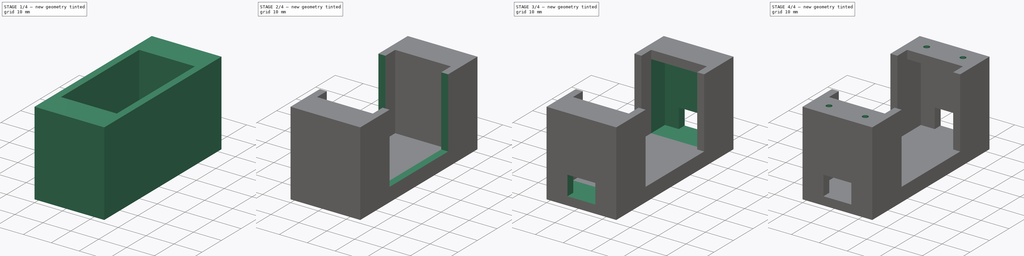
[diagram: build sequence overview — one tinted view per stage of 4, left to right]
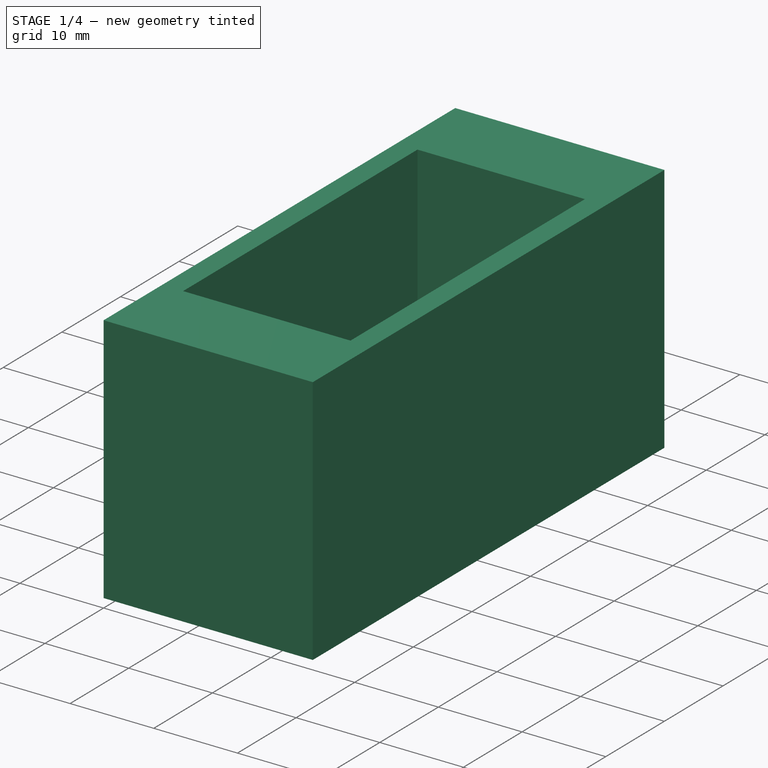
[diagram: stage 1 of 4 — iso view after this stage's code; geometry added in this stage tinted green]
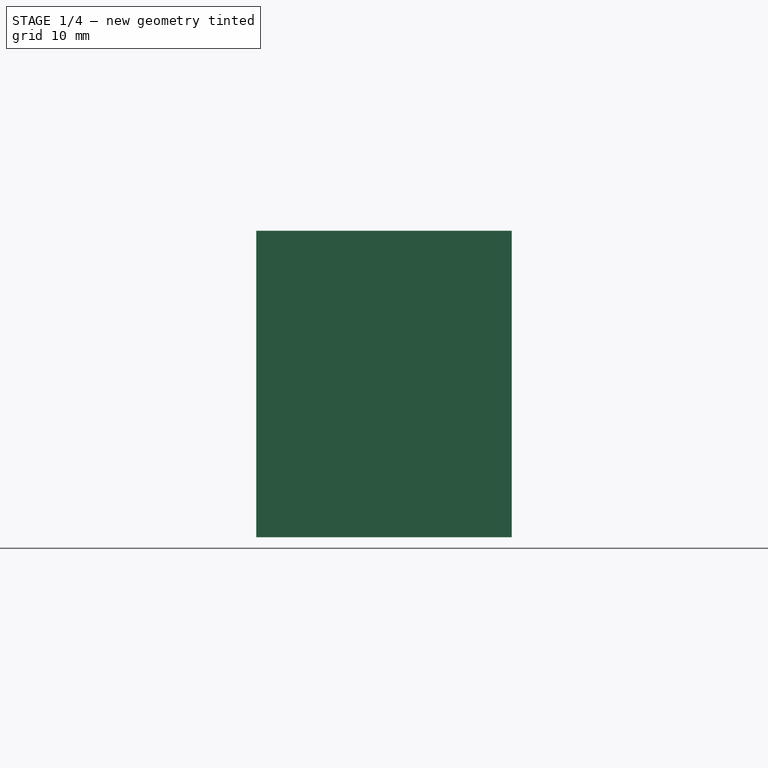
[diagram: stage 1 of 4 — front view after this stage's code; geometry added in this stage tinted green]
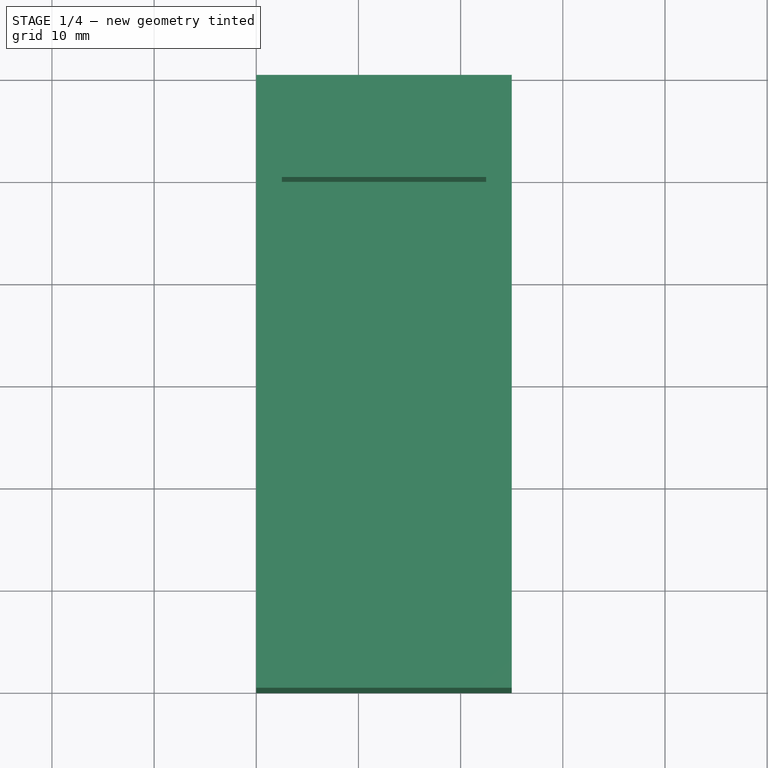
[diagram: stage 1 of 4 — top view after this stage's code; geometry added in this stage tinted green]
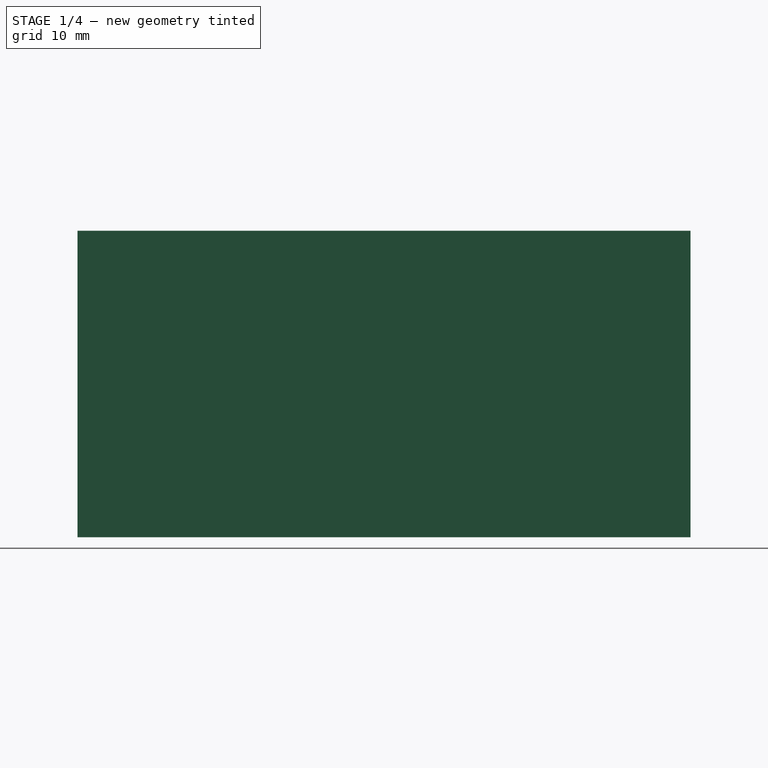
[diagram: stage 1 of 4 — right view after this stage's code; geometry added in this stage tinted green]
FCSTD DOCUMENT  (FreeCAD 0.18R16131 (Git))
Label: supp_servo_base
License: All rights reserved
LicenseURL: http://en.wikipedia.org/wiki/All_rights_reserved
objects: Sketcher::SketchObject×9, PartDesign::Pocket×8, App::DocumentObjectGroup×2, PartDesign::Pad×1, PartDesign::Body×1, PartDesign::CoordinateSystem×1, App::FeaturePython×1, App::Part×1
note: 29 computed .brp shape members not serialized (recipe doc carries the construction recipe); baked Part::Feature solids carry a one-line shape summary decoded from their .brp

FEATURE [Sketcher::SketchObject] Sketch
  MapMode = 5
  Support = -> [XY_Plane]
  sketch-geometry (4):
    g0: LineSegment StartX=0 StartY=0 StartZ=0 EndX=25 EndY=0 EndZ=0
    g1: LineSegment StartX=25 StartY=0 StartZ=0 EndX=25 EndY=60 EndZ=0
    g2: LineSegment StartX=25 StartY=60 StartZ=0 EndX=0 EndY=60 EndZ=0
    g3: LineSegment StartX=0 StartY=60 StartZ=0 EndX=0 EndY=0 EndZ=0
  constraints (11):
    c: Coincident(g0,g1)
    c: Coincident(g1,g2)
    c: Coincident(g2,g3)
    c: Coincident(g3,g0)
    c: Horizontal(g0)
    c: Horizontal(g2)
    c: Vertical(g1)
    c: Vertical(g3)
    c: Coincident(g0,g-1)
    c: DistanceY(g3,g3) = 60
    c: DistanceX(g0,g0) = 25
FEATURE [PartDesign::Pad] Pad
  Length = 30
  Length2 = 100
  Profile = -> Sketch
  Type = 0
FEATURE [Sketcher::SketchObject] Sketch001
  ExternalGeometry = -> [Pad]
  MapMode = 5
  Placement = pos=(0,0,30) rot=(0,0,1;0rad)
  Support = -> [Pad]
  sketch-geometry (11):
    g0: GeomPoint X=12.5 Y=60 Z=0
    g1: GeomPoint X=12.5 Y=0 Z=0
    g2: GeomPoint X=12.5 Y=30 Z=0
    g3: GeomPoint X=12.5 Y=50 Z=0
    g4: GeomPoint X=12.5 Y=10 Z=0
    g5: LineSegment StartX=2.5 StartY=10 StartZ=0 EndX=22.5 EndY=10 EndZ=0
    g6: LineSegment StartX=22.5 StartY=10 StartZ=0 EndX=22.5 EndY=50 EndZ=0
    g7: LineSegment StartX=22.5 StartY=50 StartZ=0 EndX=2.5 EndY=50 EndZ=0
    g8: LineSegment StartX=2.5 StartY=50 StartZ=0 EndX=2.5 EndY=10 EndZ=0
    g9: GeomPoint X=12.5 Y=10 Z=0
    g10: GeomPoint X=0 Y=10 Z=0
  constraints (23):
    c: PointOnObject(g0,g-3)
    c: DistanceX(g-3,g0) = 12.5
    c: PointOnObject(g1,g-4)
    c: DistanceX(g1,g-1) = -12.5
    c: DistanceY(g1,g2) = 30
    c: DistanceY(g3,g0) = 10
    c: DistanceY(g1,g4) = 10
    c: Coincident(g5,g6)
    c: Coincident(g6,g7)
    c: Coincident(g7,g8)
    c: Coincident(g8,g5)
    c: Horizontal(g5)
    c: Horizontal(g7)
    c: Vertical(g6)
    c: Vertical(g8)
    c: DistanceX(g5,g5) = 20
    c: DistanceY(g6,g6) = 40
    c: PointOnObject(g9,g5)
    c: DistanceX(g5,g9) = 10
    c: Coincident(g9,g4)
    c: PointOnObject(g10,g-5)
    c: DistanceY(g-1,g10) = 10
    c: DistanceX(g10,g5) = 2.5
FEATURE [PartDesign::Pocket] Pocket
  BaseFeature = -> Pad
  Length = 27
  Length2 = 100
  Profile = -> Sketch001
  Type = 0
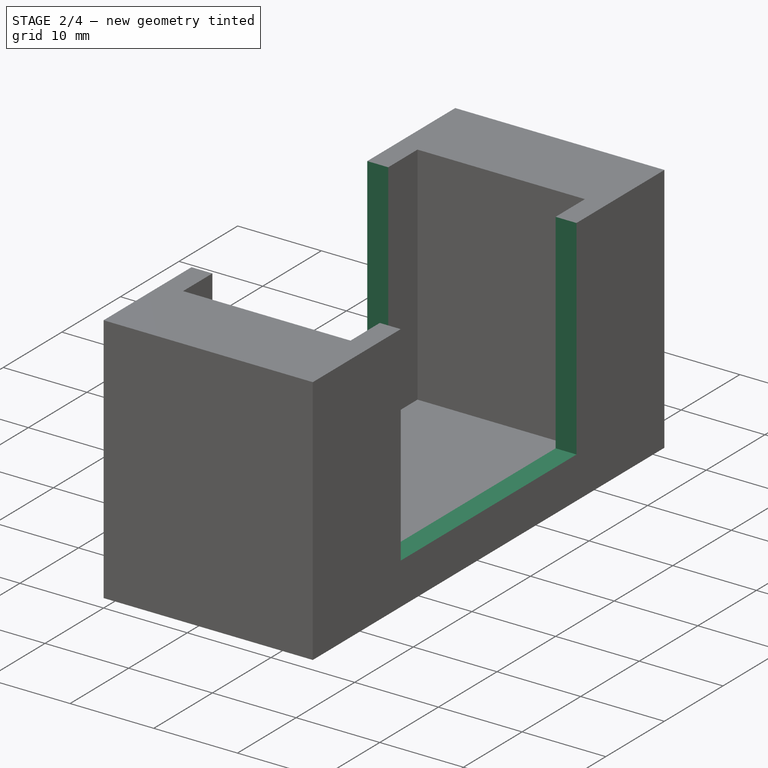
[diagram: stage 2 of 4 — iso view after this stage's code; geometry added in this stage tinted green]
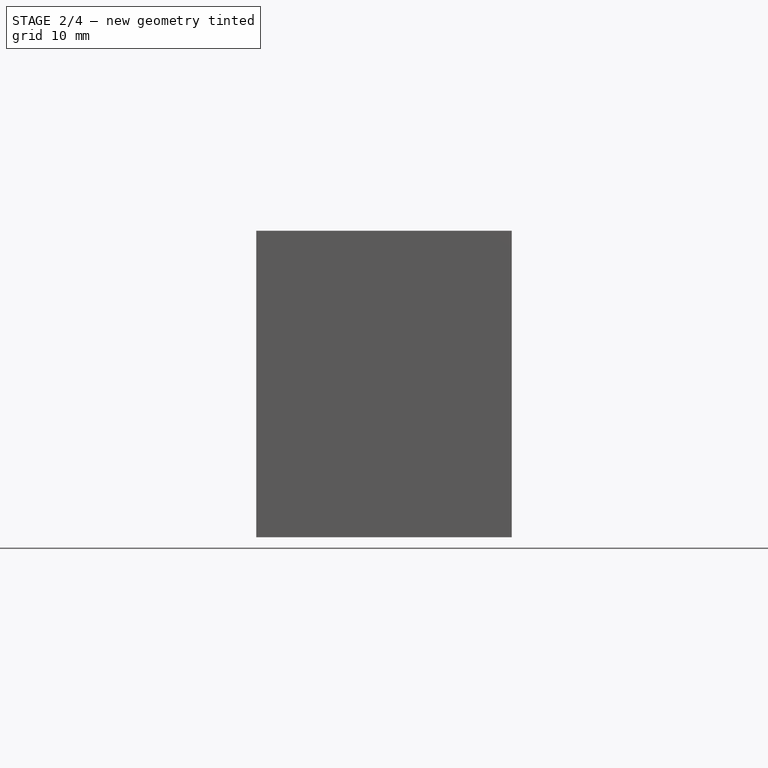
[diagram: stage 2 of 4 — front view after this stage's code; geometry added in this stage tinted green]
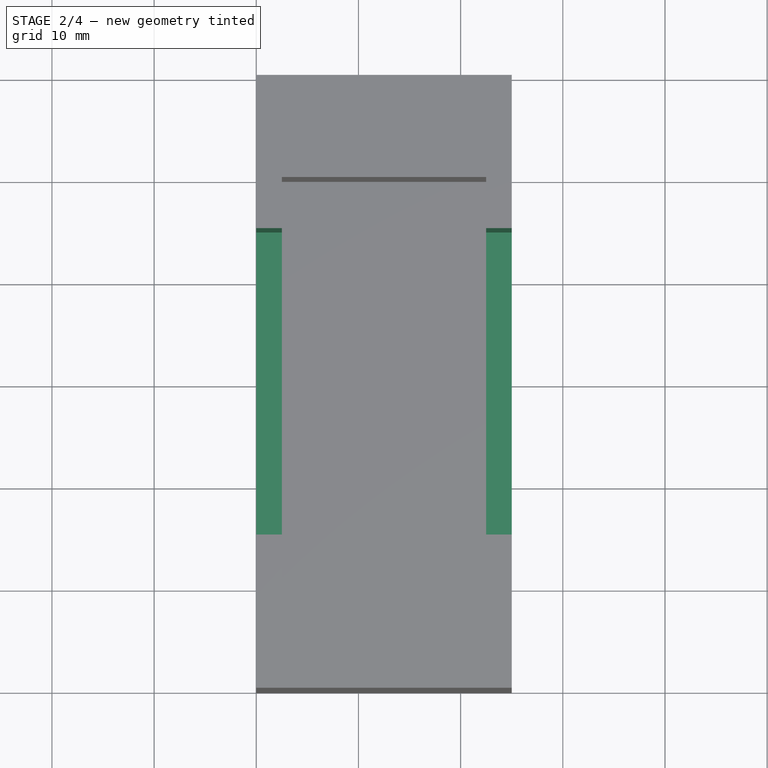
[diagram: stage 2 of 4 — top view after this stage's code; geometry added in this stage tinted green]
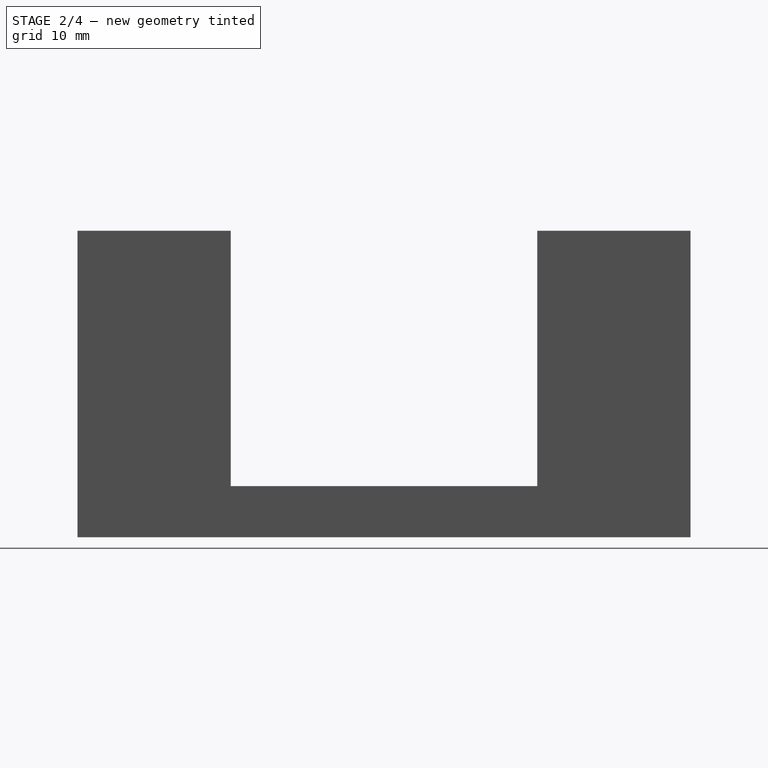
[diagram: stage 2 of 4 — right view after this stage's code; geometry added in this stage tinted green]
FEATURE [Sketcher::SketchObject] Sketch002
  ExternalGeometry = -> [Pocket]
  MapMode = 5
  Placement = pos=(0,0,30) rot=(0,0,1;0rad)
  Support = -> [Pocket]
  sketch-geometry (4):
    g0: LineSegment StartX=0 StartY=45 StartZ=0 EndX=2.5 EndY=45 EndZ=0
    g1: LineSegment StartX=2.5 StartY=45 StartZ=0 EndX=2.5 EndY=15 EndZ=0
    g2: LineSegment StartX=2.5 StartY=15 StartZ=0 EndX=0 EndY=15 EndZ=0
    g3: LineSegment StartX=0 StartY=15 StartZ=0 EndX=0 EndY=45 EndZ=0
  constraints (12):
    c: Coincident(g0,g1)
    c: Coincident(g1,g2)
    c: Coincident(g2,g3)
    c: Coincident(g3,g0)
    c: Horizontal(g0)
    c: Horizontal(g2)
    c: Vertical(g1)
    c: Vertical(g3)
    c: PointOnObject(g0,g-4)
    c: DistanceY(g0,g-4) = 5
    c: DistanceX(g0,g0) = 2.5
    c: DistanceY(g1,g1) = 30
FEATURE [Sketcher::SketchObject] Sketch003
  ExternalGeometry = -> [Pocket]
  MapMode = 5
  Placement = pos=(0,0,30) rot=(0,0,1;0rad)
  Support = -> [Pocket]
  sketch-geometry (4):
    g0: LineSegment StartX=22.5 StartY=45 StartZ=0 EndX=25 EndY=45 EndZ=0
    g1: LineSegment StartX=25 StartY=45 StartZ=0 EndX=25 EndY=15 EndZ=0
    g2: LineSegment StartX=25 StartY=15 StartZ=0 EndX=22.5 EndY=15 EndZ=0
    g3: LineSegment StartX=22.5 StartY=15 StartZ=0 EndX=22.5 EndY=45 EndZ=0
  constraints (12):
    c: Coincident(g0,g1)
    c: Coincident(g1,g2)
    c: Coincident(g2,g3)
    c: Coincident(g3,g0)
    c: Horizontal(g0)
    c: Horizontal(g2)
    c: Vertical(g1)
    c: Vertical(g3)
    c: PointOnObject(g0,g-4)
    c: DistanceY(g1,g1) = 30
    c: DistanceY(g0,g-4) = 5
    c: DistanceX(g0,g0) = 2.5
FEATURE [PartDesign::Pocket] Pocket001
  BaseFeature = -> Pocket
  Length = 25
  Length2 = 100
  Profile = -> Sketch002
  Type = 0
FEATURE [PartDesign::Pocket] Pocket002
  BaseFeature = -> Pocket001
  Length = 25
  Length2 = 100
  Profile = -> Sketch003
  Type = 0
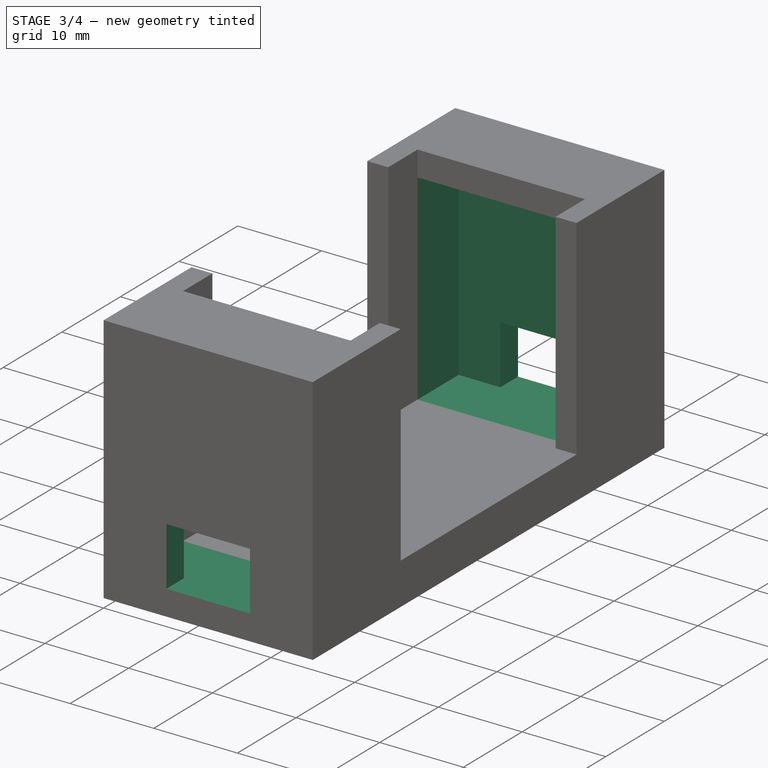
[diagram: stage 3 of 4 — iso view after this stage's code; geometry added in this stage tinted green]
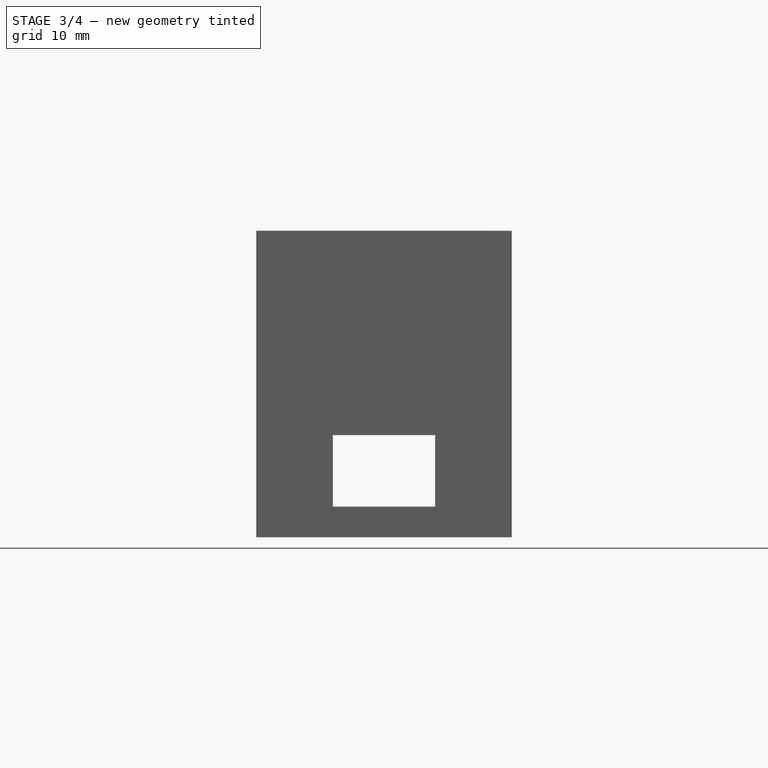
[diagram: stage 3 of 4 — front view after this stage's code; geometry added in this stage tinted green]
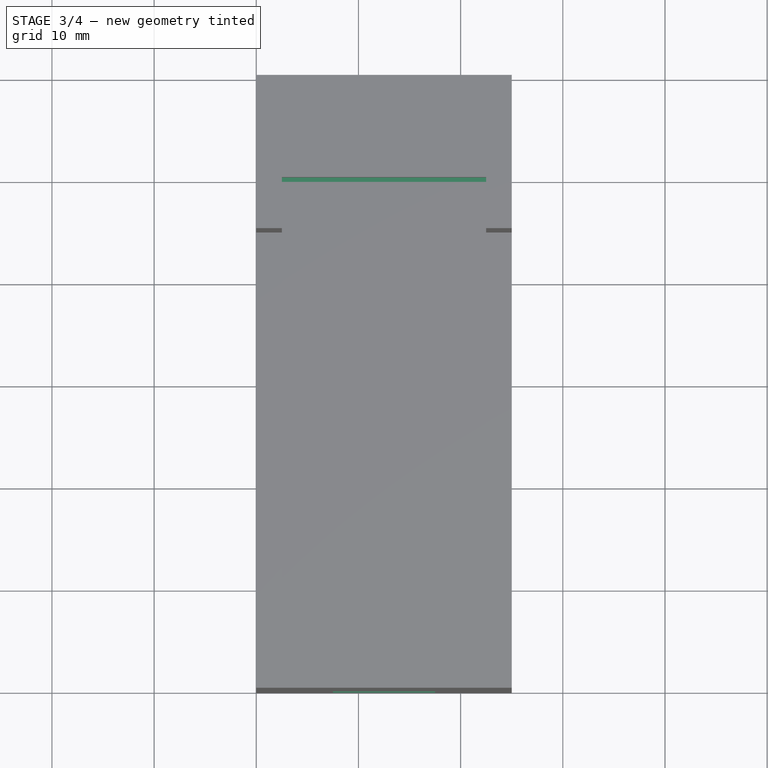
[diagram: stage 3 of 4 — top view after this stage's code; geometry added in this stage tinted green]
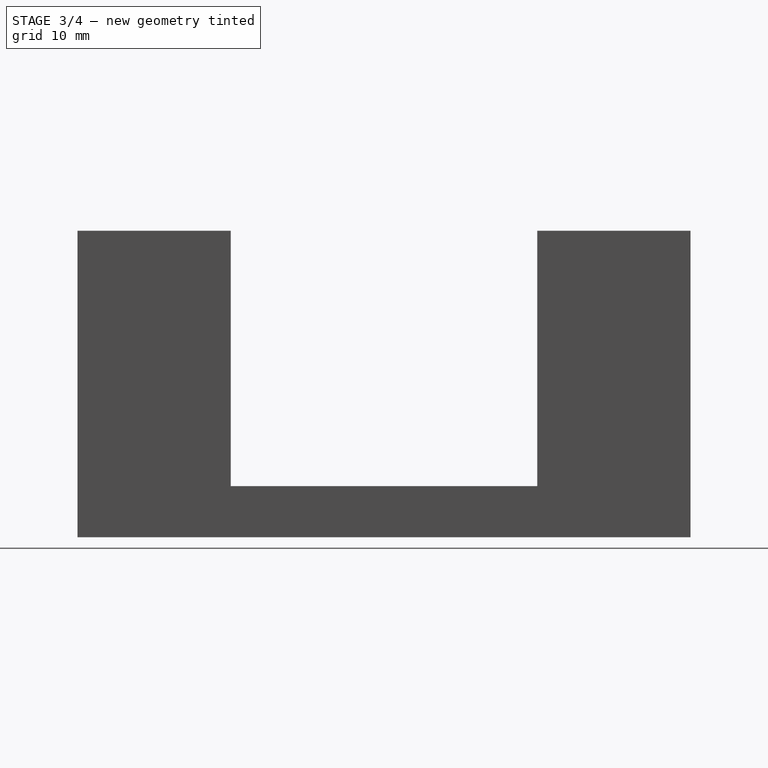
[diagram: stage 3 of 4 — right view after this stage's code; geometry added in this stage tinted green]
FEATURE [Sketcher::SketchObject] Sketch004
  ExternalGeometry = -> [Pocket002]
  MapMode = 5
  Placement = pos=(0,50,0) rot=(1,0,0;1.5708rad)
  Support = -> [Pocket002]
  sketch-geometry (4):
    g0: LineSegment StartX=2.5 StartY=27 StartZ=0 EndX=22.5 EndY=27 EndZ=0
    g1: LineSegment StartX=22.5 StartY=27 StartZ=0 EndX=22.5 EndY=3 EndZ=0
    g2: LineSegment StartX=22.5 StartY=3 StartZ=0 EndX=2.5 EndY=3 EndZ=0
    g3: LineSegment StartX=2.5 StartY=3 StartZ=0 EndX=2.5 EndY=27 EndZ=0
  constraints (12):
    c: Coincident(g0,g1)
    c: Coincident(g1,g2)
    c: Coincident(g2,g3)
    c: Coincident(g3,g0)
    c: Horizontal(g0)
    c: Horizontal(g2)
    c: Vertical(g1)
    c: Vertical(g3)
    c: DistanceY(g0,g-3) = 3
    c: PointOnObject(g0,g-3)
    c: PointOnObject(g0,g-5)
    c: DistanceY(g1,g1) = 24
FEATURE [Sketcher::SketchObject] Sketch005
  ExternalGeometry = -> [Pocket002]
  MapMode = 5
  Placement = pos=(0,10,0) rot=(0,0.707107,0.707107;3.14159rad)
  Support = -> [Pocket002]
  sketch-geometry (4):
    g0: LineSegment StartX=-22.5 StartY=27 StartZ=0 EndX=-2.5 EndY=27 EndZ=0
    g1: LineSegment StartX=-2.5 StartY=27 StartZ=0 EndX=-2.5 EndY=3 EndZ=0
    g2: LineSegment StartX=-2.5 StartY=3 StartZ=0 EndX=-22.5 EndY=3 EndZ=0
    g3: LineSegment StartX=-22.5 StartY=3 StartZ=0 EndX=-22.5 EndY=27 EndZ=0
  constraints (12):
    c: Coincident(g0,g1)
    c: Coincident(g1,g2)
    c: Coincident(g2,g3)
    c: Coincident(g3,g0)
    c: Horizontal(g0)
    c: Horizontal(g2)
    c: Vertical(g1)
    c: Vertical(g3)
    c: DistanceY(g0,g-3) = 3
    c: PointOnObject(g0,g-4)
    c: PointOnObject(g0,g-5)
    c: DistanceY(g1,g1) = 24
FEATURE [PartDesign::Pocket] Pocket003
  BaseFeature = -> Pocket002
  Length = 7
  Length2 = 100
  Profile = -> Sketch004
  Type = 0
FEATURE [PartDesign::Pocket] Pocket004
  BaseFeature = -> Pocket003
  Length = 7
  Length2 = 100
  Profile = -> Sketch005
  Type = 0
FEATURE [Sketcher::SketchObject] Sketch006
  ExternalGeometry = -> [Pocket004]
  MapMode = 5
  Placement = pos=(0,60,0) rot=(0,0.707107,0.707107;3.14159rad)
  Support = -> [Pocket004]
  sketch-geometry (4):
    g0: LineSegment StartX=-17.5 StartY=10 StartZ=0 EndX=-7.5 EndY=10 EndZ=0
    g1: LineSegment StartX=-7.5 StartY=10 StartZ=0 EndX=-7.5 EndY=3 EndZ=0
    g2: LineSegment StartX=-7.5 StartY=3 StartZ=0 EndX=-17.5 EndY=3 EndZ=0
    g3: LineSegment StartX=-17.5 StartY=3 StartZ=0 EndX=-17.5 EndY=10 EndZ=0
  constraints (12):
    c: Coincident(g0,g1)
    c: Coincident(g1,g2)
    c: Coincident(g2,g3)
    c: Coincident(g3,g0)
    c: Horizontal(g0)
    c: Horizontal(g2)
    c: Vertical(g1)
    c: Vertical(g3)
    c: DistanceY(g-3,g2) = 3
    c: DistanceX(g2,g2) = 10
    c: DistanceY(g1,g1) = 7
    c: DistanceX(g-3,g2) = 7.5
FEATURE [PartDesign::Pocket] Pocket005
  BaseFeature = -> Pocket004
  Length = 5
  Length2 = 100
  Profile = -> Sketch006
  Type = 1
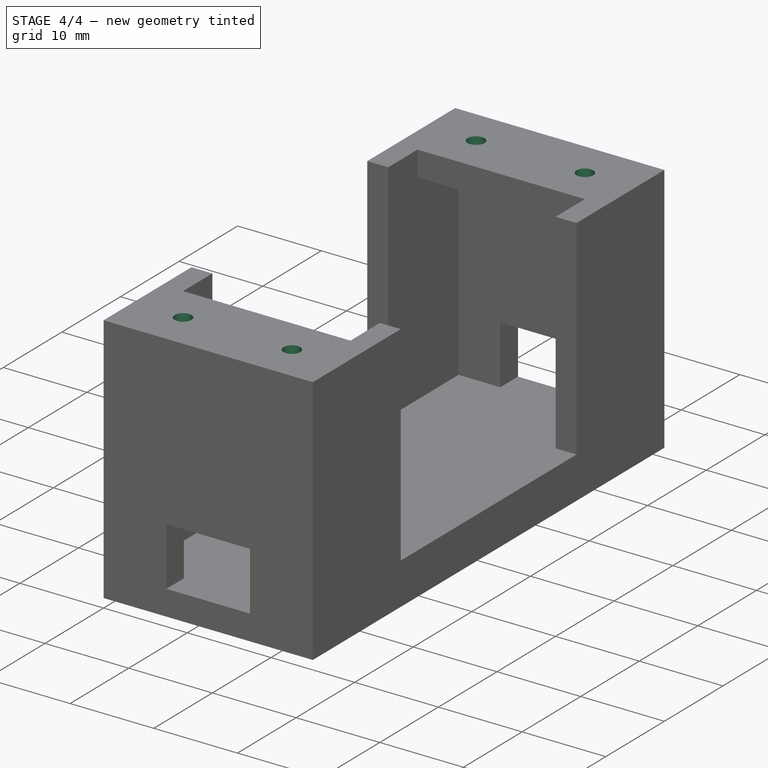
[diagram: stage 4 of 4 — iso view after this stage's code; geometry added in this stage tinted green]
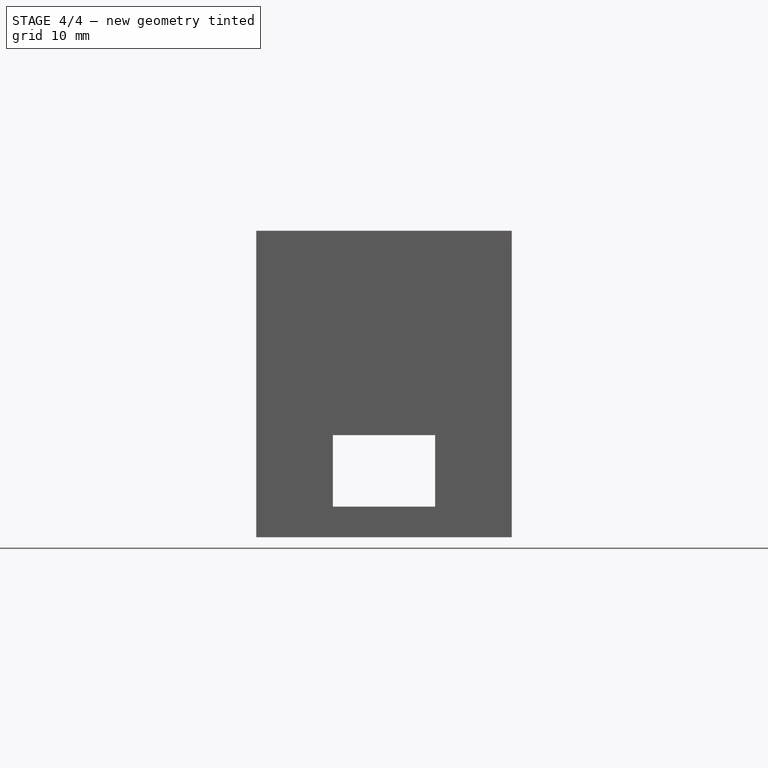
[diagram: stage 4 of 4 — front view after this stage's code; geometry added in this stage tinted green]
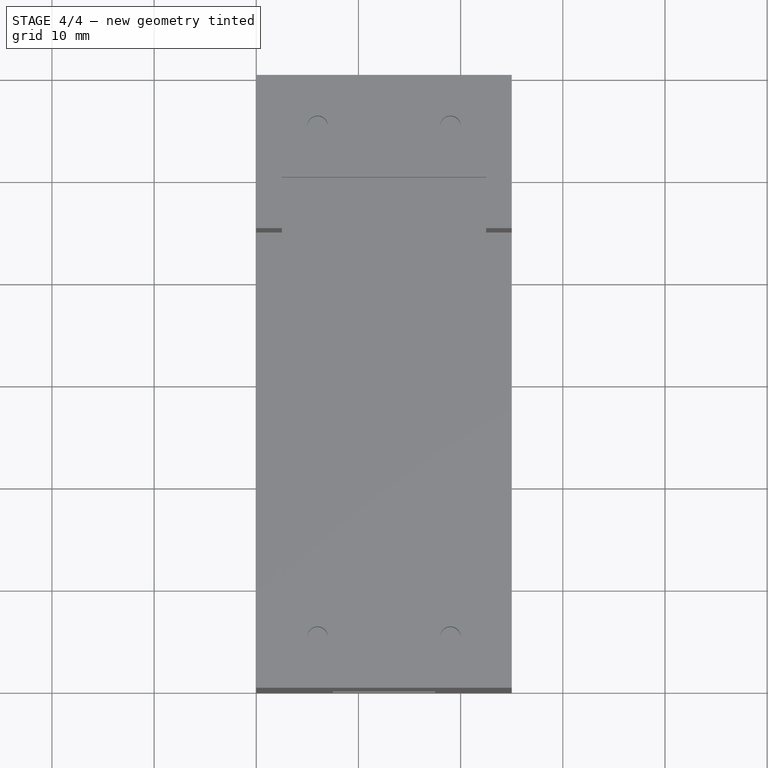
[diagram: stage 4 of 4 — top view after this stage's code; geometry added in this stage tinted green]
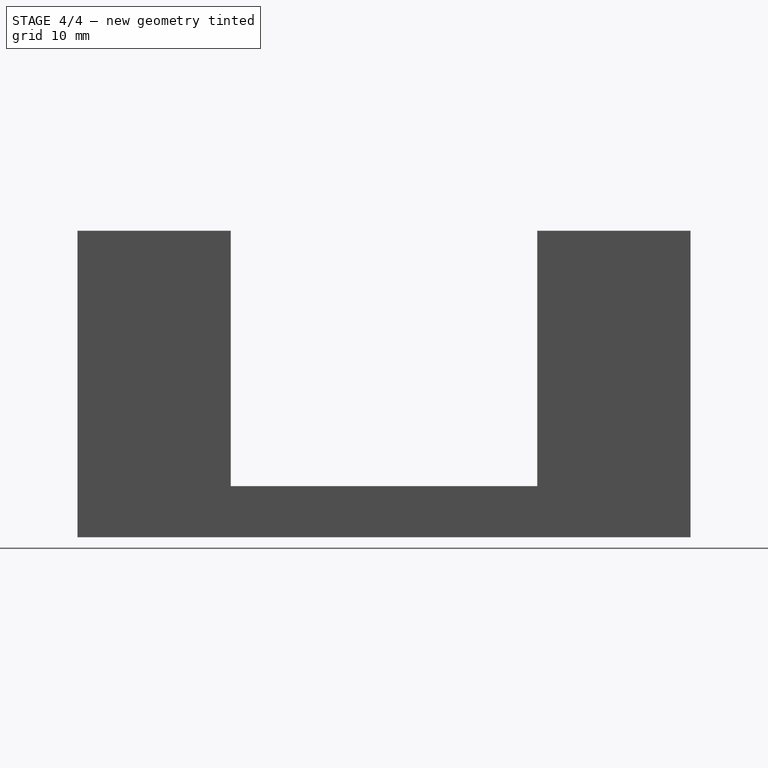
[diagram: stage 4 of 4 — right view after this stage's code; geometry added in this stage tinted green]
FEATURE [Sketcher::SketchObject] Sketch007
  ExternalGeometry = -> [Pocket005]
  MapMode = 5
  Placement = pos=(0,0,30) rot=(0,0,1;0rad)
  Support = -> [Pocket005]
  sketch-geometry (4):
    g0: GeomPoint X=0 Y=5 Z=0
    g1: GeomPoint X=25 Y=5 Z=0
    g2: Circle CenterX=6 CenterY=5 CenterZ=0 NormalX=0 NormalY=0 NormalZ=1 AngleXU=0 Radius=1
    g3: Circle CenterX=19 CenterY=5 CenterZ=0 NormalX=0 NormalY=0 NormalZ=1 AngleXU=0 Radius=1
  constraints (8):
    c: PointOnObject(g0,g-2)
    c: DistanceY(g-1,g0) = 5
    c: PointOnObject(g1,g-3)
    c: DistanceY(g-3,g1) = 5
    c: Radius(g2) = 1
    c: Radius(g3) = 1
    c: DistanceX(g0,g2) = 6
    c: DistanceX(g3,g1) = 6
FEATURE [Sketcher::SketchObject] Sketch008
  ExternalGeometry = -> [Pocket005]
  MapMode = 5
  Placement = pos=(0,0,30) rot=(0,0,1;0rad)
  Support = -> [Pocket005]
  sketch-geometry (4):
    g0: GeomPoint X=0 Y=55 Z=0
    g1: GeomPoint X=25 Y=55 Z=0
    g2: Circle CenterX=6 CenterY=55 CenterZ=0 NormalX=0 NormalY=0 NormalZ=1 AngleXU=0 Radius=1
    g3: Circle CenterX=19 CenterY=55 CenterZ=0 NormalX=0 NormalY=0 NormalZ=1 AngleXU=0 Radius=1
  constraints (8):
    c: PointOnObject(g0,g-2)
    c: DistanceY(g0,g-3) = 5
    c: PointOnObject(g1,g-4)
    c: DistanceY(g1,g-4) = 5
    c: Radius(g2) = 1
    c: DistanceX(g0,g2) = 6
    c: Radius(g3) = 1
    c: DistanceX(g3,g1) = 6
FEATURE [PartDesign::Pocket] Pocket006
  BaseFeature = -> Pocket005
  Length = 3
  Length2 = 100
  Profile = -> Sketch007
  Type = 0
FEATURE [PartDesign::Pocket] Pocket007
  BaseFeature = -> Pocket006
  Length = 3
  Length2 = 100
  Profile = -> Sketch008
  Type = 0
FEATURE [PartDesign::Body] Body
  Group = -> [Sketch,Pad,Sketch001,Pocket,Sketch002,Sketch003,Pocket001,Pocket002,Sketch004,Sketch005,Pocket003,Pocket004,Sketch006,Pocket005,Sketch007,Sketch008,Pocket006,Pocket007]
  Origin = -> Origin
  Tip = -> Pocket007
FEATURE [App::DocumentObjectGroup] Parts
FEATURE [PartDesign::CoordinateSystem] LCS_Origin
  AttacherType = Attacher::AttachEngine3D
  MapMode = 2
  Support = -> [X_Axis001]
FEATURE [App::DocumentObjectGroup] Constraints
FEATURE [App::FeaturePython] Variables  # WARN: FeaturePython — macro-defined, semantics opaque (R4)
FEATURE [App::Part] Model
  Group = -> [LCS_Origin,Constraints,Variables,Body]
  Origin = -> Origin001
  Type = Assembly4 Model
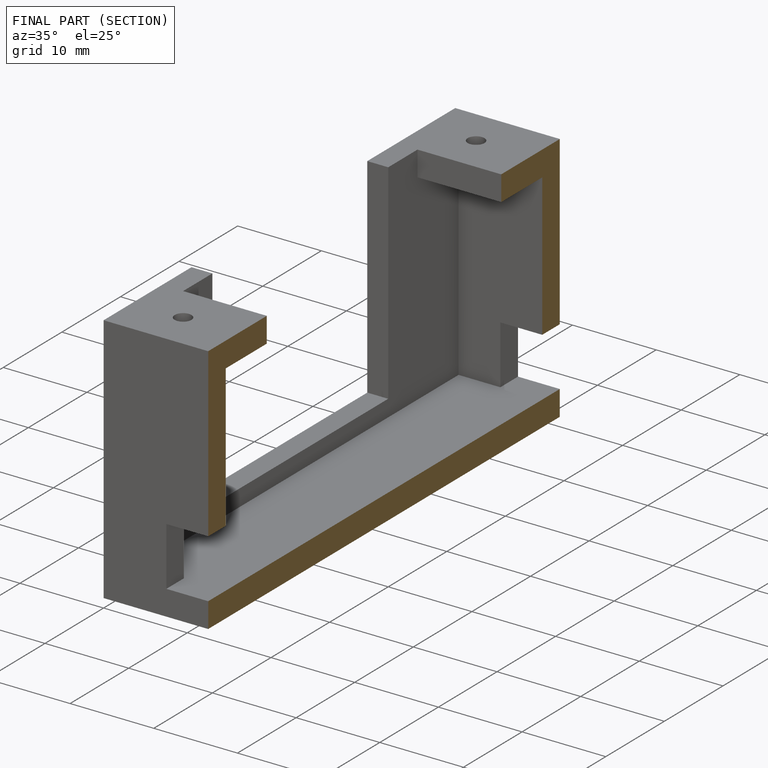
[diagram: finished part — half-section view (interior)]
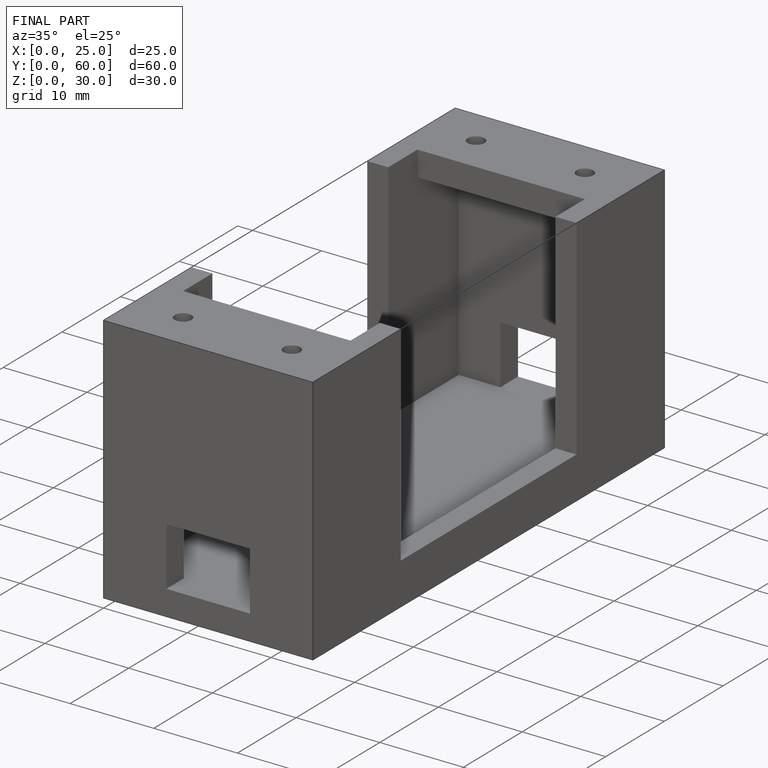
[diagram: finished part — iso view with bounding-box wireframe]
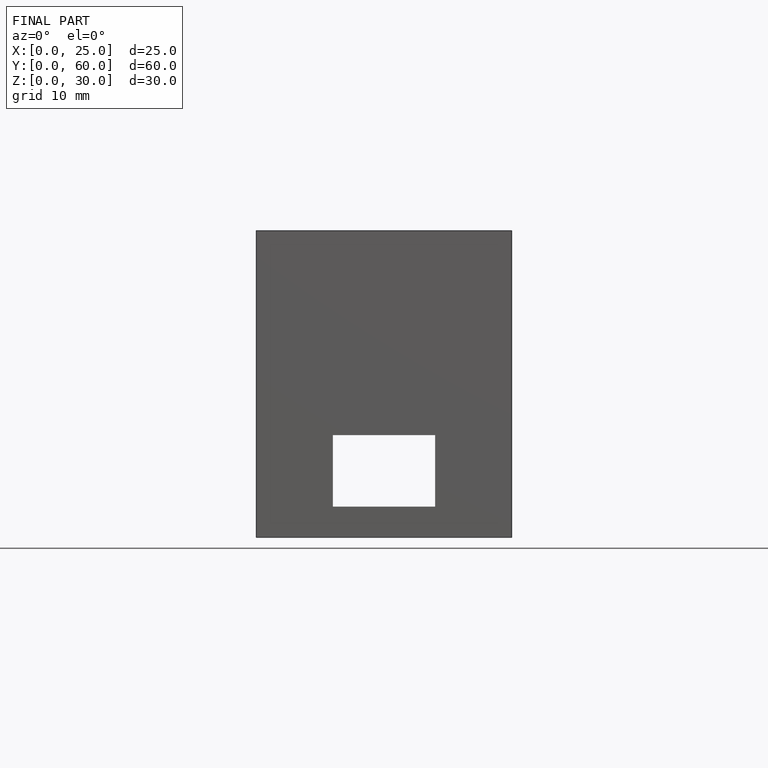
[diagram: finished part — front view with bounding-box wireframe]
